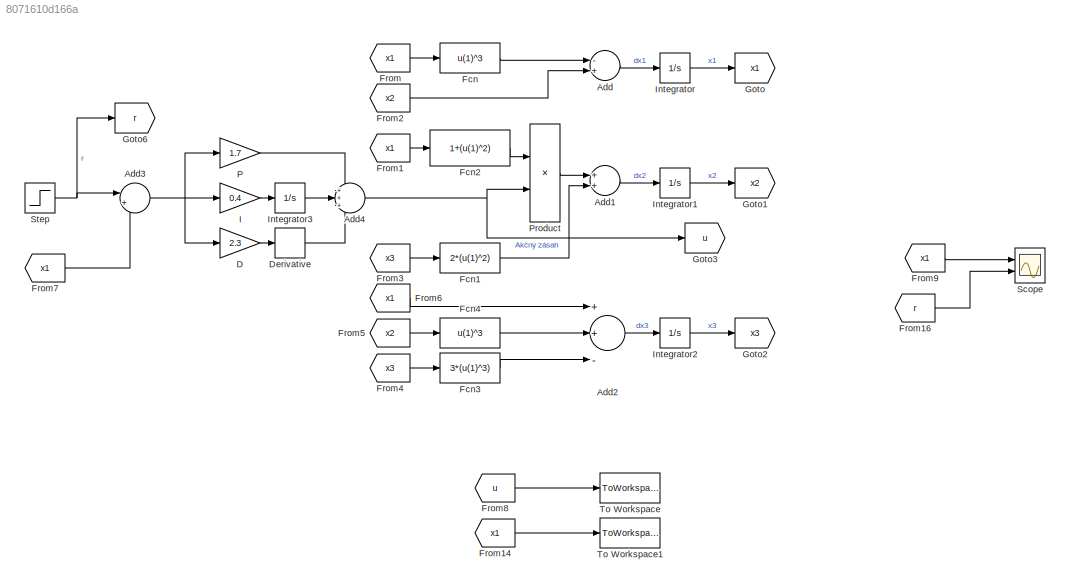
MODEL slx_8071610d166a
KIND model
CONFIG AbsTol = auto
CONFIG EnableMultiTasking = off
CONFIG FixedStep = 0.01
CONFIG MaxStep = auto
CONFIG MinStep = auto
CONFIG RelTol = 1e-5
CONFIG SampleTimeConstraint = Unconstrained
CONFIG Solver = VariableStepAuto
CONFIG SolverName = VariableStepAuto
CONFIG StartTime = 0.0
CONFIG StopTime = 3.6295
BLOCK [Sum] Add
  InputSameDT = off
  Inputs = -+
  OutDataTypeStr = Inherit: Inherit via internal rule
  Ports = [2, 1]
  SaturateOnIntegerOverflow = off
BLOCK [Sum] Add1
  InputSameDT = off
  OutDataTypeStr = Inherit: Inherit via internal rule
  Ports = [2, 1]
  SaturateOnIntegerOverflow = off
BLOCK [Sum] Add2
  InputSameDT = off
  Inputs = ++-
  OutDataTypeStr = Inherit: Inherit via internal rule
  Ports = [3, 1]
  SaturateOnIntegerOverflow = off
BLOCK [Sum] Add3
  IconShape = round
  InputSameDT = off
  Inputs = |+-
  OutDataTypeStr = Inherit: Inherit via internal rule
  Ports = [2, 1]
  SaturateOnIntegerOverflow = off
BLOCK [Sum] Add4
  IconShape = round
  InputSameDT = off
  Inputs = +++
  OutDataTypeStr = Inherit: Inherit via internal rule
  Ports = [3, 1]
  SaturateOnIntegerOverflow = off
BLOCK [Gain] D
  Gain = 2.3
  OutDataTypeStr = Inherit: Inherit via internal rule
  ParamDataTypeStr = Inherit: Inherit via internal rule
  SaturateOnIntegerOverflow = off
BLOCK [Derivative] Derivative
BLOCK [Fcn] Fcn
  Expr = u(1)^3
BLOCK [Fcn] Fcn1
  Expr = 2*(u(1)^2)
BLOCK [Fcn] Fcn2
  Expr = 1+(u(1)^2)
BLOCK [Fcn] Fcn3
  Expr = 3*(u(1)^3)
BLOCK [Fcn] Fcn4
  Expr = u(1)^3
BLOCK [From] From
  GotoTag = x1
BLOCK [From] From1
  GotoTag = x1
BLOCK [From] From14
  GotoTag = x1
BLOCK [From] From16
  GotoTag = r
BLOCK [From] From2
  GotoTag = x2
BLOCK [From] From3
  GotoTag = x3
BLOCK [From] From4
  GotoTag = x3
BLOCK [From] From5
  GotoTag = x2
BLOCK [From] From6
  GotoTag = x1
BLOCK [From] From7
  GotoTag = x1
BLOCK [From] From8
  GotoTag = u
BLOCK [From] From9
  GotoTag = x1
BLOCK [Goto] Goto
  GotoTag = x1
BLOCK [Goto] Goto1
  GotoTag = x2
BLOCK [Goto] Goto2
  GotoTag = x3
BLOCK [Goto] Goto3
  GotoTag = u
BLOCK [Goto] Goto6
  GotoTag = r
BLOCK [Gain] I
  Gain = 0.4
  OutDataTypeStr = Inherit: Inherit via internal rule
  ParamDataTypeStr = Inherit: Inherit via internal rule
  SaturateOnIntegerOverflow = off
BLOCK [Integrator] Integrator
  Ports = [1, 1]
BLOCK [Integrator] Integrator1
  Ports = [1, 1]
BLOCK [Integrator] Integrator2
  Ports = [1, 1]
BLOCK [Integrator] Integrator3
  Ports = [1, 1]
BLOCK [Gain] P
  Gain = 1.7
  OutDataTypeStr = Inherit: Inherit via internal rule
  ParamDataTypeStr = Inherit: Inherit via internal rule
  SaturateOnIntegerOverflow = off
BLOCK [Product] Product
  InputSameDT = off
  OutDataTypeStr = Inherit: Inherit via internal rule
  Ports = [2, 1]
  RndMeth = Floor
  SaturateOnIntegerOverflow = off
BLOCK [Scope] Scope
  Floating = off
  NumInputPorts = 2
  Ports = [2]
  ScopeSpecificationString = Simulink.scopes.TimeScopeBlockCfg('CurrentConfiguration', extmgr.ConfigurationSet(extmgr.Configuration('Core','General UI',true),extmgr.Configuration('Core','Source UI',true),extmgr.Configuration('Sources','WiredSimulink',true),extmgr.Configuration('Visuals','Time Domain',true,'SerializedDisplays',{struct('MinYLimReal','-0.40395','MaxYLimReal','3.63559','YLabelReal','','MinYLimMag','0.00000','MaxY...<+1426ch>
BLOCK [Step] Step
  After = -1
  SampleTime = 0
  Time = 0
BLOCK [ToWorkspace] To Workspace
  FixptAsFi = on
  MaxDataPoints = inf
  Ports = [1]
  SampleTime = -1
  Save2DSignal = 3-D array (concatenate along third dimension)
  SaveFormat = Timeseries
  VariableName = u
BLOCK [ToWorkspace] To Workspace1
  FixptAsFi = on
  MaxDataPoints = inf
  Ports = [1]
  SampleTime = -1
  Save2DSignal = 3-D array (concatenate along third dimension)
  SaveFormat = Timeseries
  VariableName = vys
LINE Add1:1 -> Integrator1:1
LINE Add2:1 -> Integrator2:1
NET Add3:1 -> D:1, I:1, P:1
NET Add4:1 -> Goto3:1, Product:2
LINE Add:1 -> Integrator:1
LINE D:1 -> Derivative:1
LINE Derivative:1 -> Add4:3
LINE Fcn1:1 -> Add1:2
LINE Fcn2:1 -> Product:1
LINE Fcn3:1 -> Add2:3
LINE Fcn4:1 -> Add2:2
LINE Fcn:1 -> Add:1
LINE From14:1 -> To Workspace1:1
LINE From16:1 -> Scope:2
LINE From1:1 -> Fcn2:1
LINE From2:1 -> Add:2
LINE From3:1 -> Fcn1:1
LINE From4:1 -> Fcn3:1
LINE From5:1 -> Fcn4:1
LINE From6:1 -> Add2:1
LINE From7:1 -> Add3:2
LINE From8:1 -> To Workspace:1
LINE From9:1 -> Scope:1
LINE From:1 -> Fcn:1
LINE I:1 -> Integrator3:1
LINE Integrator1:1 -> Goto1:1
LINE Integrator2:1 -> Goto2:1
LINE Integrator3:1 -> Add4:2
LINE Integrator:1 -> Goto:1
LINE P:1 -> Add4:1
LINE Product:1 -> Add1:1
NET Step:1 -> Add3:1, Goto6:1
note: NET lines group one-source signal fan-out (src -> all destinations, sorted); 1:1 wires keep LINE
